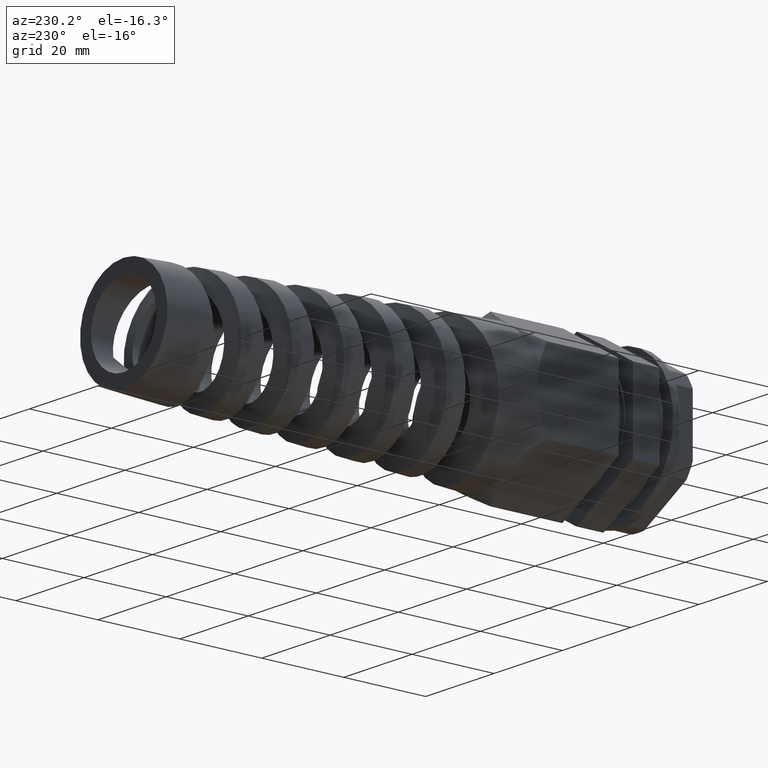
[diagram: clean part render]
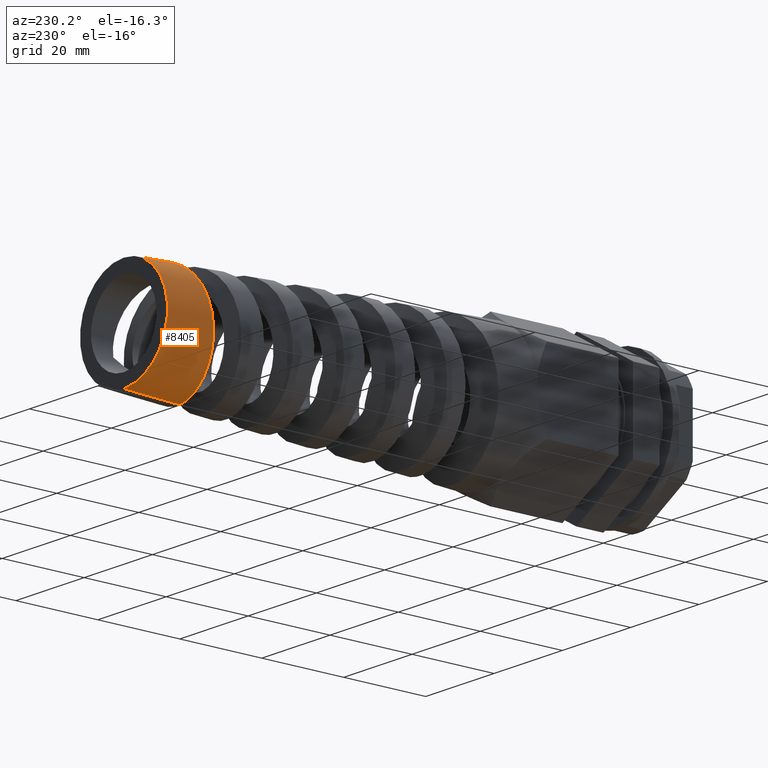
[diagram: same view with one face highlighted and labeled with its STEP entity id]
A machine part, auxiliary view. The second image highlights one B-rep face of the part: STEP entity #8405.
In plain terms, the highlighted conical surface has half-angle 2.435 deg.
Its self-contained STEP definition (entity closure, byte-faithful):
#127 = CARTESIAN_POINT ( 'NONE',  ( 0.0000000000000000000, 117.0000000000000000, 0.0000000000000000000 ) ) ;
#245 = CARTESIAN_POINT ( 'NONE',  ( 1.178486632654091800E-013, 103.3078790566272000, -13.38230859184459300 ) ) ;
#347 = CARTESIAN_POINT ( 'NONE',  ( -6.632241532813090100, 104.2919220543408900, -11.58329049084291600 ) ) ;
#401 = CARTESIAN_POINT ( 'NONE',  ( -13.14727064427442100, 106.0182951842904200, -1.831174281165713000 ) ) ;
#452 = CARTESIAN_POINT ( 'NONE',  ( -9.974397254014411000, 107.6306631045494700, 8.654445055495328300 ) ) ;
#505 = CARTESIAN_POINT ( 'NONE',  ( -0.8677037122828227300, 109.1236343459310500, 13.13497187264431400 ) ) ;
#759 = FACE_OUTER_BOUND ( 'NONE', #5044, .T. ) ;
#874 = CIRCLE ( 'NONE', #7089, 12.80000000000000100 ) ;
#962 = AXIS2_PLACEMENT_3D ( 'NONE', #11555, #3527, #1170 ) ;
#1170 = DIRECTION ( 'NONE',  ( 0.0000000000000000000, 0.0000000000000000000, -1.000000000000000000 ) ) ;
#1333 = DIRECTION ( 'NONE',  ( 0.0000000000000000000, 0.0000000000000000000, -1.000000000000000000 ) ) ;
#1558 = CARTESIAN_POINT ( 'NONE',  ( -8.082215676138623900, 104.5388485449734200, -10.63552600710748000 ) ) ;
#1612 = CARTESIAN_POINT ( 'NONE',  ( -13.25587623318389200, 106.2034017665801900, -0.5253235138406058300 ) ) ;
#1663 = CARTESIAN_POINT ( 'NONE',  ( -9.072486834459295900, 107.8149314946959500, 9.584837624379359200 ) ) ;
#2246 = LINE ( 'NONE', #5545, #13649 ) ;
#2489 = ORIENTED_EDGE ( 'NONE', *, *, #12679, .F. ) ;
#2728 = CARTESIAN_POINT ( 'NONE',  ( -9.673185769558214600, 104.8440127922424000, -9.163018924107703400 ) ) ;
#2778 = CARTESIAN_POINT ( 'NONE',  ( -13.17294050022703900, 106.5125835282179600, 1.637449726194677200 ) ) ;
#2825 = CARTESIAN_POINT ( 'NONE',  ( -8.081494170150179500, 108.0020340548965800, 10.42401774231888100 ) ) ;
#2899 = LINE ( 'NONE', #10686, #8749 ) ;
#3527 = DIRECTION ( 'NONE',  ( -0.0000000000000000000, -1.000000000000000000, -0.0000000000000000000 ) ) ;
#3863 = CARTESIAN_POINT ( 'NONE',  ( -0.8645302392893849900, 103.4301515075434700, -13.35623782125931300 ) ) ;
#3916 = CARTESIAN_POINT ( 'NONE',  ( -10.51921887794824400, 105.0307408593893400, -8.164884292622181400 ) ) ;
#3969 = CARTESIAN_POINT ( 'NONE',  ( -12.81545912038310300, 106.7615696412374900, 3.336417265700608100 ) ) ;
#4020 = CARTESIAN_POINT ( 'NONE',  ( -6.638970185923342100, 108.2540863627776000, 11.40994836962729900 ) ) ;
#4784 = ORIENTED_EDGE ( 'NONE', *, *, #13124, .T. ) ;
#5031 = CARTESIAN_POINT ( 'NONE',  ( -2.165062802989116800, 103.6165169697369100, -13.19986335987992400 ) ) ;
#5044 = EDGE_LOOP ( 'NONE', ( #2489, #13375, #4784, #6912 ) ) ;
#5078 = CARTESIAN_POINT ( 'NONE',  ( -11.49643777111935500, 105.2776241993854600, -6.740092845787878600 ) ) ;
#5123 = CARTESIAN_POINT ( 'NONE',  ( -12.41598285618292300, 106.9468427802852400, 4.582410906106098900 ) ) ;
#5175 = CARTESIAN_POINT ( 'NONE',  ( -4.675462374339558000, 108.5616602518661400, 12.30783273318396600 ) ) ;
#5521 = CARTESIAN_POINT ( 'NONE',  ( 1.634542480578167500E-015, 117.0000000000000000, 12.80000000000000100 ) ) ;
#5545 = CARTESIAN_POINT ( 'NONE',  ( 0.0000000000000000000, 117.0000000000000000, -12.80000000000000100 ) ) ;
#6116 = CARTESIAN_POINT ( 'NONE',  ( -0.4320328547723178400, 103.3687663541995400, -13.37971913206278200 ) ) ;
#6211 = CARTESIAN_POINT ( 'NONE',  ( -4.268378679265385500, 103.9217910540512000, -12.68540611580005300 ) ) ;
#6264 = CARTESIAN_POINT ( 'NONE',  ( -12.57792771668956000, 105.6470952799100900, -4.358294415510463300 ) ) ;
#6311 = CARTESIAN_POINT ( 'NONE',  ( -11.51335857137179500, 107.2560300662825300, 6.543856452208645500 ) ) ;
#6367 = CARTESIAN_POINT ( 'NONE',  ( -3.431169516321090000, 108.7502412489598400, 12.70284124249166300 ) ) ;
#6912 = ORIENTED_EDGE ( 'NONE', *, *, #9072, .T. ) ;
#7089 = AXIS2_PLACEMENT_3D ( 'NONE', #127, #8350, #1333 ) ;
#7333 = DIRECTION ( 'NONE',  ( 5.203564296219679300E-018, -0.9990968782410205600, 0.04249032700565259100 ) ) ;
#7391 = CARTESIAN_POINT ( 'NONE',  ( -5.861527252331559800, 104.1672179620495300, -11.99763623311232600 ) ) ;
#7441 = CARTESIAN_POINT ( 'NONE',  ( -13.08300531665207900, 105.9565001889100400, -2.259556704383681100 ) ) ;
#7486 = CARTESIAN_POINT ( 'NONE',  ( -10.52570068724958800, 107.5069871356561000, 7.983515180107328700 ) ) ;
#7534 = CARTESIAN_POINT ( 'NONE',  ( -1.727786499874743600, 109.0017277533379000, 13.05491805273384300 ) ) ;
#8350 = DIRECTION ( 'NONE',  ( -0.0000000000000000000, -1.000000000000000000, -0.0000000000000000000 ) ) ;
#8405 = ADVANCED_FACE ( 'NONE', ( #759 ), #12283, .T. ) ;
#8407 = CARTESIAN_POINT ( 'NONE',  ( 1.178486632654091800E-013, 103.3078790566272000, -13.38230859184459300 ) ) ;
#8549 = CARTESIAN_POINT ( 'NONE',  ( -7.004348012056177600, 104.3539146258585900, -11.35886537541779600 ) ) ;
#8596 = CARTESIAN_POINT ( 'NONE',  ( -13.23382968494275900, 106.1417842522943700, -0.9645473201054419700 ) ) ;
#8649 = CARTESIAN_POINT ( 'NONE',  ( -9.683609112835158700, 107.6915667442224700, 8.974702347888889900 ) ) ;
#8706 = CARTESIAN_POINT ( 'NONE',  ( -6.797952716751800800E-015, 109.2482867446305900, 13.12967056373410200 ) ) ;
#8749 = VECTOR ( 'NONE', #7333, 1000.000000000000200 ) ;
#8956 = VERTEX_POINT ( 'NONE', #8407 ) ;
#9072 = EDGE_CURVE ( 'NONE', #8956, #11026, #12308, .T. ) ;
#9428 = VERTEX_POINT ( 'NONE', #11704 ) ;
#9706 = CARTESIAN_POINT ( 'NONE',  ( -8.750072002468408900, 104.6592269510572500, -10.08690213930972800 ) ) ;
#9753 = CARTESIAN_POINT ( 'NONE',  ( -13.25693141873982300, 106.3886608766091500, 0.7780442925931274600 ) ) ;
#9803 = CARTESIAN_POINT ( 'NONE',  ( -8.752131695270785300, 107.8770227386974600, 9.874770187297732700 ) ) ;
#10686 = CARTESIAN_POINT ( 'NONE',  ( 1.567547902908612200E-015, 117.0000000000000000, 12.80000000000000100 ) ) ;
#10796 = CARTESIAN_POINT ( 'NONE',  ( -9.968281690365051500, 104.9065995667323500, -8.837036911673807900 ) ) ;
#10836 = CARTESIAN_POINT ( 'NONE',  ( -12.92100442930496000, 106.6990910215237800, 2.912420195776777500 ) ) ;
#10886 = CARTESIAN_POINT ( 'NONE',  ( -7.729533128248098400, 108.0652426363323100, 10.68442425689645100 ) ) ;
#11026 = VERTEX_POINT ( 'NONE', #12353 ) ;
#11555 = CARTESIAN_POINT ( 'NONE',  ( 0.0000000000000000000, 117.0000000000000000, 0.0000000000000000000 ) ) ;
#11704 = CARTESIAN_POINT ( 'NONE',  ( 0.0000000000000000000, 117.0000000000000000, -12.80000000000000100 ) ) ;
#11870 = CARTESIAN_POINT ( 'NONE',  ( -1.730474961610807700, 103.5539417083354000, -13.26654190269769300 ) ) ;
#11913 = CARTESIAN_POINT ( 'NONE',  ( -10.77673531383774200, 105.0926100793082000, -7.817216841579016400 ) ) ;
#11964 = CARTESIAN_POINT ( 'NONE',  ( -12.56228326990457200, 106.8858311939001000, 4.173349905739497600 ) ) ;
#12016 = CARTESIAN_POINT ( 'NONE',  ( -5.874791744712788400, 108.3759325279583400, 11.81515177172853900 ) ) ;
#12283 = CONICAL_SURFACE ( 'NONE', #962, 12.80000000000000100, 0.04250312294124203300 ) ;
#12308 = B_SPLINE_CURVE_WITH_KNOTS ( 'NONE', 3,
 ( #245, #6116, #3863, #11870, #5031, #12969, #6211, #14077, #7391, #347, #8549, #1558, #9706, #2728, #10796, #3916, #11913, #5078, #13014, #6264, #14121, #7441, #401, #8596, #1612, #9753, #2778, #10836, #3969, #11964, #5123, #13061, #6311, #14172, #7486, #452, #8649, #1663, #9803, #2825, #10886, #4020, #12016, #5175, #13110, #6367, #14217, #7534, #505, #8706 ),
 .UNSPECIFIED., .F., .F.,
 ( 4, 2, 2, 2, 2, 2, 2, 2, 2, 2, 2, 2, 2, 2, 2, 2, 2, 2, 2, 2, 2, 2, 2, 2, 4 ),
 ( 0.5130109106642215500, 0.5143177084701956400, 0.5156245062761697400, 0.5182381018881180300, 0.5195448996940921200, 0.5208516975000662100, 0.5234652931120144000, 0.5247720909179886000, 0.5260788887239626900, 0.5286924843359108700, 0.5313060799478591700, 0.5326128777538332600, 0.5339196755598073500, 0.5365332711717555300, 0.5378400689777297300, 0.5391468667837038300, 0.5417604623956520100, 0.5430672602016261000, 0.5443740580076001900, 0.5456808558135742800, 0.5469876536195483800, 0.5496012492314966700, 0.5509080470374707600, 0.5522148448434448500, 0.5548284404553930300 ),
 .UNSPECIFIED. ) ;
#12347 = VERTEX_POINT ( 'NONE', #5521 ) ;
#12353 = CARTESIAN_POINT ( 'NONE',  ( -6.797952716751800800E-015, 109.2482867446305900, 13.12967056373410200 ) ) ;
#12559 = EDGE_CURVE ( 'NONE', #12347, #9428, #874, .T. ) ;
#12679 = EDGE_CURVE ( 'NONE', #12347, #11026, #2899, .T. ) ;
#12969 = CARTESIAN_POINT ( 'NONE',  ( -3.442502774533313200, 103.8017878329745800, -12.93943521608769500 ) ) ;
#13014 = CARTESIAN_POINT ( 'NONE',  ( -11.90727058309805700, 105.3989440131040400, -5.974644479929993100 ) ) ;
#13061 = CARTESIAN_POINT ( 'NONE',  ( -11.91985711443529400, 107.1317427885093700, 5.781473287852038300 ) ) ;
#13110 = CARTESIAN_POINT ( 'NONE',  ( -4.266791111986841600, 108.6241335960408800, 12.45273799305359600 ) ) ;
#13124 = EDGE_CURVE ( 'NONE', #9428, #8956, #2246, .T. ) ;
#13375 = ORIENTED_EDGE ( 'NONE', *, *, #12559, .T. ) ;
#13465 = DIRECTION ( 'NONE',  ( 0.0000000000000000000, -0.9990968782410205600, -0.04249032700565259100 ) ) ;
#13649 = VECTOR ( 'NONE', #13465, 1000.000000000000200 ) ;
#14077 = CARTESIAN_POINT ( 'NONE',  ( -5.467640965471249000, 104.1052777931610500, -12.18491743535295600 ) ) ;
#14121 = CARTESIAN_POINT ( 'NONE',  ( -12.82875969076528800, 105.7709710812089300, -3.530265621908269300 ) ) ;
#14172 = CARTESIAN_POINT ( 'NONE',  ( -10.78752472074926800, 107.4440291134079600, 7.630739637659077700 ) ) ;
#14217 = CARTESIAN_POINT ( 'NONE',  ( -3.005194793171506600, 108.8137178738274700, 12.80745160328292100 ) ) ;